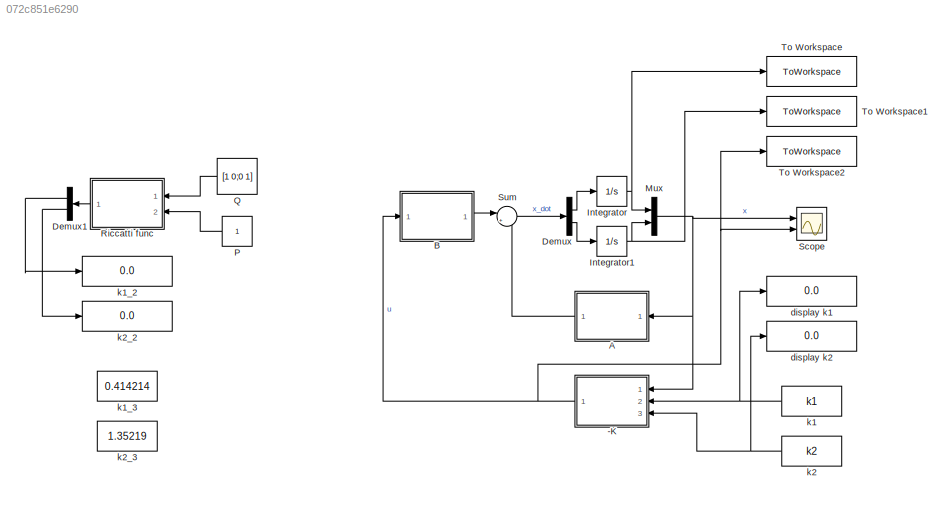
MODEL slx_072c851e6290
KIND model
CONFIG AbsTol = auto
CONFIG EnableMultiTasking = off
CONFIG FixedStep = auto
CONFIG MaxStep = auto
CONFIG MinStep = auto
CONFIG RelTol = 1e-3
CONFIG SampleTimeConstraint = Unconstrained
CONFIG Solver = VariableStepAuto
CONFIG SolverName = VariableStepAuto
CONFIG StartTime = 0.0
CONFIG StopTime = 10.0
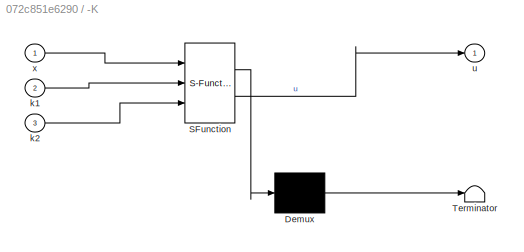
BLOCK [SubSystem] -K
  ErrorFcn = Stateflow.Translate.translate
  PermitHierarchicalResolution = ExplicitOnly
  Ports = [3, 1]
  RequestExecContextInheritance = off
  SFBlockType = MATLAB Function
  TreatAsAtomicUnit = on
BLOCK [Demux] -K/ Demux 
  Outputs = 1
  Ports = [1, 1]
BLOCK [S-Function] -K/ SFunction 
  EnableBusSupport = on
  FunctionName = sf_sfun
  PortCounts = [3 2]
  Ports = [3, 2]
  SFcnIsStateOwnerBlock = off
  SFunctionDeploymentMode = off
  Tag = Stateflow S-Function opti_R2019a 3
BLOCK [Terminator] -K/ Terminator 
BLOCK [Inport] -K/k1
  Port = 2
BLOCK [Inport] -K/k2
  Port = 3
BLOCK [Outport] -K/u
BLOCK [Inport] -K/x
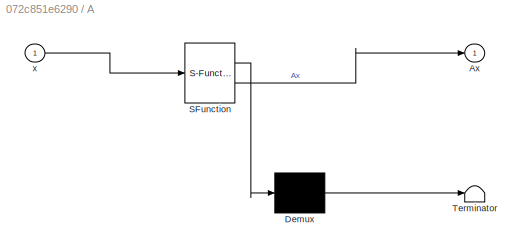
BLOCK [SubSystem] A
  ErrorFcn = Stateflow.Translate.translate
  PermitHierarchicalResolution = ExplicitOnly
  Ports = [1, 1]
  RequestExecContextInheritance = off
  SFBlockType = MATLAB Function
  TreatAsAtomicUnit = on
BLOCK [Demux] A/ Demux 
  Outputs = 1
  Ports = [1, 1]
BLOCK [S-Function] A/ SFunction 
  EnableBusSupport = on
  FunctionName = sf_sfun
  PortCounts = [1 2]
  Ports = [1, 2]
  SFcnIsStateOwnerBlock = off
  SFunctionDeploymentMode = off
  Tag = Stateflow S-Function opti_R2019a 1
BLOCK [Terminator] A/ Terminator 
BLOCK [Outport] A/Ax
BLOCK [Inport] A/x
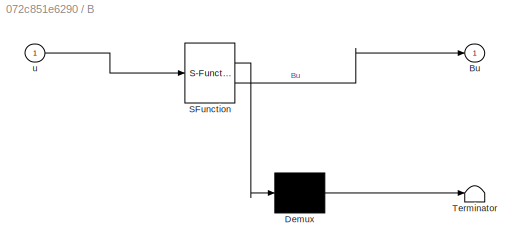
BLOCK [SubSystem] B
  ErrorFcn = Stateflow.Translate.translate
  PermitHierarchicalResolution = ExplicitOnly
  Ports = [1, 1]
  RequestExecContextInheritance = off
  SFBlockType = MATLAB Function
  TreatAsAtomicUnit = on
BLOCK [Demux] B/ Demux 
  Outputs = 1
  Ports = [1, 1]
BLOCK [S-Function] B/ SFunction 
  EnableBusSupport = on
  FunctionName = sf_sfun
  PortCounts = [1 2]
  Ports = [1, 2]
  SFcnIsStateOwnerBlock = off
  SFunctionDeploymentMode = off
  Tag = Stateflow S-Function opti_R2019a 2
BLOCK [Terminator] B/ Terminator 
BLOCK [Outport] B/Bu
BLOCK [Inport] B/u
BLOCK [Demux] Demux
  Outputs = 2
  Ports = [1, 2]
BLOCK [Demux] Demux1
  Commented = on
  Outputs = 2
  Ports = [1, 2]
BLOCK [Integrator] Integrator
  InitialCondition = 1
  Ports = [1, 1]
BLOCK [Integrator] Integrator1
  InitialCondition = -1
  Ports = [1, 1]
BLOCK [Mux] Mux
  DisplayOption = bar
  Inputs = 2
  Ports = [2, 1]
BLOCK [Constant] P
  Commented = on
BLOCK [Constant] Q
  Commented = on
  Value = [1 0;0 1]
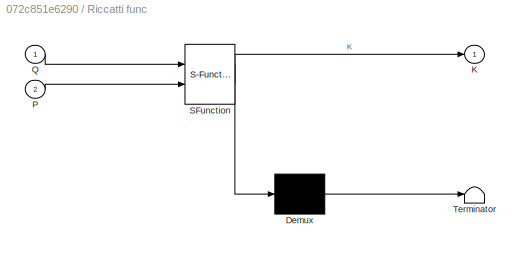
BLOCK [SubSystem] Riccatti func
  Commented = on
  ErrorFcn = Stateflow.Translate.translate
  PermitHierarchicalResolution = ExplicitOnly
  Ports = [2, 1]
  RequestExecContextInheritance = off
  SFBlockType = MATLAB Function
  TreatAsAtomicUnit = on
BLOCK [Demux] Riccatti func/ Demux 
  Outputs = 1
  Ports = [1, 1]
BLOCK [S-Function] Riccatti func/ SFunction 
  EnableBusSupport = on
  FunctionName = sf_sfun
  PortCounts = [2 2]
  Ports = [2, 2]
  SFcnIsStateOwnerBlock = off
  SFunctionDeploymentMode = off
  Tag = Stateflow S-Function 4
BLOCK [Terminator] Riccatti func/ Terminator 
BLOCK [Outport] Riccatti func/K
BLOCK [Inport] Riccatti func/P
  Port = 2
BLOCK [Inport] Riccatti func/Q
BLOCK [Scope] Scope
  Floating = off
  NumInputPorts = 2
  Ports = [2]
  ScopeSpecificationString = Simulink.scopes.TimeScopeBlockCfg('CurrentConfiguration', extmgr.ConfigurationSet(extmgr.Configuration('Core','General UI',true),extmgr.Configuration('Core','Source UI',true),extmgr.Configuration('Sources','WiredSimulink',true),extmgr.Configuration('Visuals','Time Domain',true,'SerializedDisplays',{struct('MinYLimReal','-1.25003','MaxYLimReal','1.2503','YLabelReal','','MinYLimMag','0.00000','MaxYL...<+1356ch>
BLOCK [Sum] Sum
  Inputs = |++
  Ports = [2, 1]
BLOCK [ToWorkspace] To Workspace
  FixptAsFi = on
  MaxDataPoints = inf
  Ports = [1]
  SampleTime = -1
  SaveFormat = Timeseries
  VariableName = x1
BLOCK [ToWorkspace] To Workspace1
  FixptAsFi = on
  MaxDataPoints = inf
  Ports = [1]
  SampleTime = -1
  SaveFormat = Timeseries
  VariableName = x2
BLOCK [ToWorkspace] To Workspace2
  FixptAsFi = on
  MaxDataPoints = inf
  Ports = [1]
  SampleTime = -1
  SaveFormat = Timeseries
  VariableName = u
BLOCK [Display] display k1
  Decimation = 1
  Ports = [1]
BLOCK [Display] display k2
  Decimation = 1
  Ports = [1]
BLOCK [Constant] k1
  Value = k1
BLOCK [Display] k1_2
  Commented = on
  Decimation = 1
  Ports = [1]
BLOCK [Constant] k1_3
  Commented = on
  Value = 0.414214
BLOCK [Constant] k2
  Value = k2
BLOCK [Display] k2_2
  Commented = on
  Decimation = 1
  Ports = [1]
BLOCK [Constant] k2_3
  Commented = on
  Value = 1.35219
NET -K:1 -> B:1, Scope:2, To Workspace2:1
LINE A:1 -> Sum:2
LINE B:1 -> Sum:1
LINE Demux1:1 -> k1_2:1
LINE Demux1:2 -> k2_2:1
LINE Demux:1 -> Integrator:1
LINE Demux:2 -> Integrator1:1
NET Integrator1:1 -> Mux:2, To Workspace1:1
NET Integrator:1 -> Mux:1, To Workspace:1
NET Mux:1 -> -K:1, A:1, Scope:1
LINE P:1 -> Riccatti func:2
LINE Q:1 -> Riccatti func:1
LINE Riccatti func:1 -> Demux1:1
LINE Sum:1 -> Demux:1
NET k1:1 -> -K:2, display k1:1
NET k2:1 -> -K:3, display k2:1
note: NET lines group one-source signal fan-out (src -> all destinations, sorted); 1:1 wires keep LINE
CHART A states=1 transitions=1
  STATE_LABEL 'eML_blk_kernel()'
  STATE_LABEL 'SCRIPT:\nfunction Ax = A(x)\n\nAx = [x(2);-x(1)];\n'
CHART B states=1 transitions=1
  STATE_LABEL 'eML_blk_kernel()'
  STATE_LABEL 'SCRIPT:\nfunction Bu = B(u)\n\nBu = [0;u];\n'
CHART -K states=1 transitions=1
  STATE_LABEL 'eML_blk_kernel()'
  STATE_LABEL 'SCRIPT:\nfunction u = minusK(x,k1,k2)\n\nu = -k1*x(1) - k2*x(2);\n'
CHART Riccatti func states=1 transitions=1
  STATE_LABEL 'eML_blk_kernel()'
  STATE_LABEL 'SCRIPT:\nfunction K = fcn(Q,P)\n\nA = [0,1;-1,0];\nB = [0;1];\n\nR = icare(A,B,Q,P,[],[],[]);\n\nK = R*B;'
